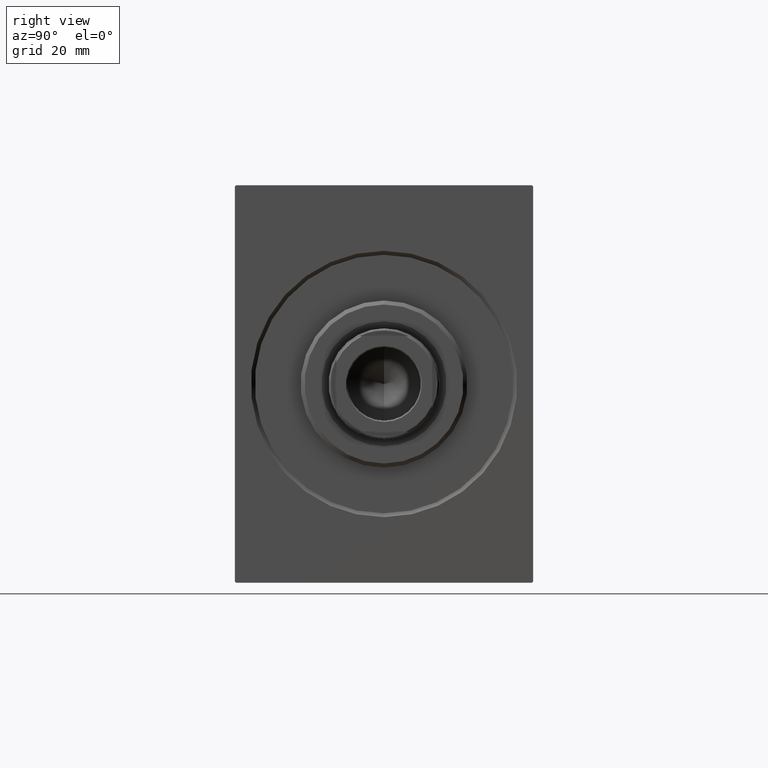
[diagram: clean part render]
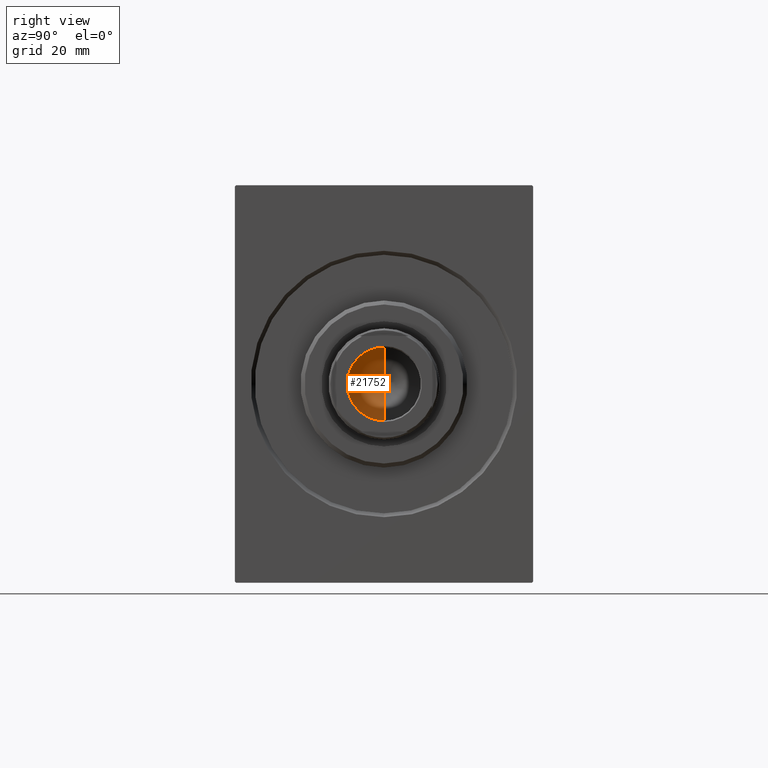
[diagram: same view with one face highlighted and labeled with its STEP entity id]
A machine part, right view. The second image highlights one B-rep face of the part: STEP entity #21752.
In plain terms, the highlighted conical surface has half-angle 59 deg.
Its self-contained STEP definition (entity closure, byte-faithful):
#165 = CARTESIAN_POINT ( 'NONE',  ( -9.249999999999994671, 1.132798289211300909E-15, 96.00000000000000000 ) ) ;
#482 = VERTEX_POINT ( 'NONE', #34660 ) ;
#922 = DIRECTION ( 'NONE',  ( 0.8571673007021124446, 0.000000000000000000, 0.5150380749100539335 ) ) ;
#4438 = AXIS2_PLACEMENT_3D ( 'NONE', #7271, #36938, #17307 ) ;
#7271 = CARTESIAN_POINT ( 'NONE',  ( 0.000000000000000000, 0.000000000000000000, 96.00000000000000000 ) ) ;
#7293 = ORIENTED_EDGE ( 'NONE', *, *, #12658, .T. ) ;
#7459 = CARTESIAN_POINT ( 'NONE',  ( 9.249999999999994671, 0.000000000000000000, 96.00000000000000000 ) ) ;
#7995 = CARTESIAN_POINT ( 'NONE',  ( -9.249999999999994671, 1.132798289211300909E-15, 96.00000000000000000 ) ) ;
#10200 = LINE ( 'NONE', #165, #13979 ) ;
#10865 = CARTESIAN_POINT ( 'NONE',  ( 0.000000000000000000, 0.000000000000000000, 96.00000000000000000 ) ) ;
#11571 = VECTOR ( 'NONE', #922, 1000.000000000000000 ) ;
#11852 = AXIS2_PLACEMENT_3D ( 'NONE', #10865, #20251, #13482 ) ;
#12658 = EDGE_CURVE ( 'NONE', #39447, #38472, #34845, .T. ) ;
#13482 = DIRECTION ( 'NONE',  ( 1.000000000000000000, 0.000000000000000000, 0.000000000000000000 ) ) ;
#13979 = VECTOR ( 'NONE', #40289, 1000.000000000000000 ) ;
#14157 = CONICAL_SURFACE ( 'NONE', #4438, 9.249999999999994671, 1.029744258676654756 ) ;
#14224 = ORIENTED_EDGE ( 'NONE', *, *, #40465, .T. ) ;
#17307 = DIRECTION ( 'NONE',  ( 1.000000000000000000, 0.000000000000000000, 0.000000000000000000 ) ) ;
#20251 = DIRECTION ( 'NONE',  ( -0.000000000000000000, -0.000000000000000000, 1.000000000000000000 ) ) ;
#20422 = ORIENTED_EDGE ( 'NONE', *, *, #22629, .F. ) ;
#21752 = ADVANCED_FACE ( 'NONE', ( #27762 ), #14157, .F. ) ;
#22629 = EDGE_CURVE ( 'NONE', #482, #38472, #34067, .T. ) ;
#25893 = CARTESIAN_POINT ( 'NONE',  ( 9.249999999999994671, 0.000000000000000000, 96.00000000000000000 ) ) ;
#27762 = FACE_OUTER_BOUND ( 'NONE', #43137, .T. ) ;
#34067 = LINE ( 'NONE', #7459, #11571 ) ;
#34660 = CARTESIAN_POINT ( 'NONE',  ( -6.793016015247754405E-15, 0.000000000000000000, 90.44203927399507847 ) ) ;
#34845 = CIRCLE ( 'NONE', #11852, 9.249999999999994671 ) ;
#36938 = DIRECTION ( 'NONE',  ( -0.000000000000000000, -0.000000000000000000, 1.000000000000000000 ) ) ;
#38472 = VERTEX_POINT ( 'NONE', #25893 ) ;
#39447 = VERTEX_POINT ( 'NONE', #7995 ) ;
#40289 = DIRECTION ( 'NONE',  ( -0.8571673007021124446, 1.049727191138618819E-16, 0.5150380749100539335 ) ) ;
#40465 = EDGE_CURVE ( 'NONE', #482, #39447, #10200, .T. ) ;
#43137 = EDGE_LOOP ( 'NONE', ( #20422, #14224, #7293 ) ) ;